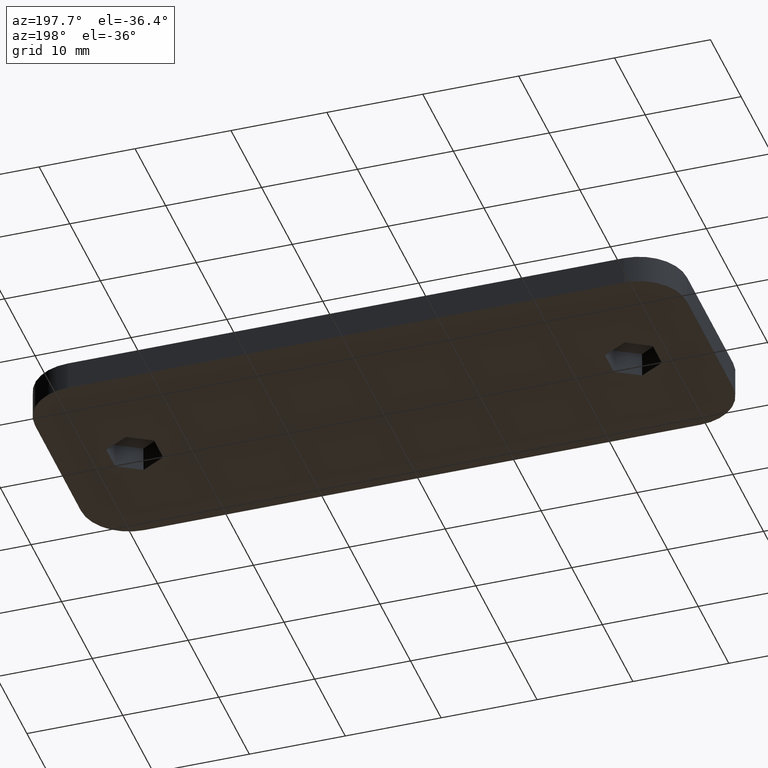
[diagram: clean part render]
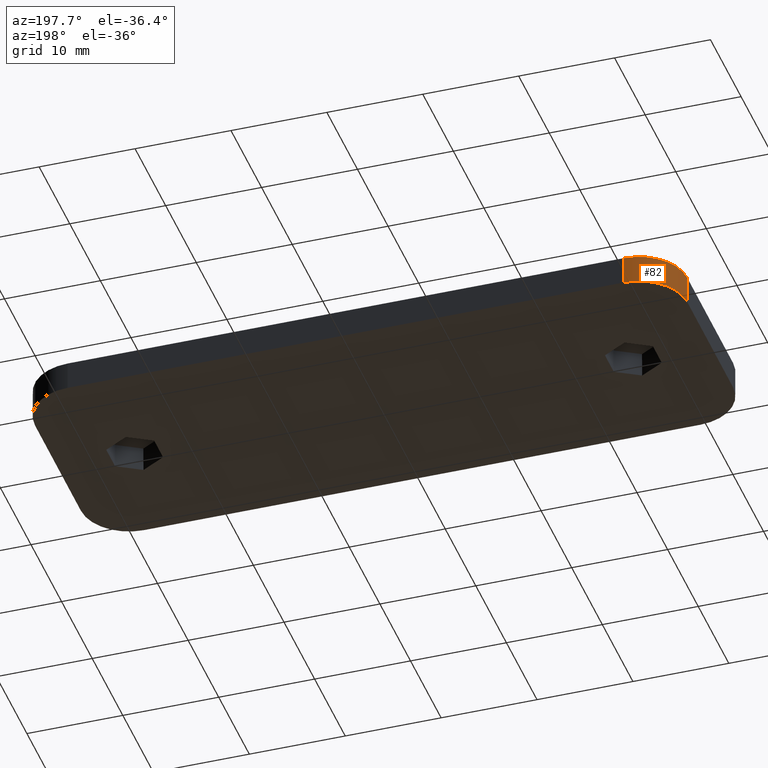
[diagram: same view with one face highlighted and labeled with its STEP entity id]
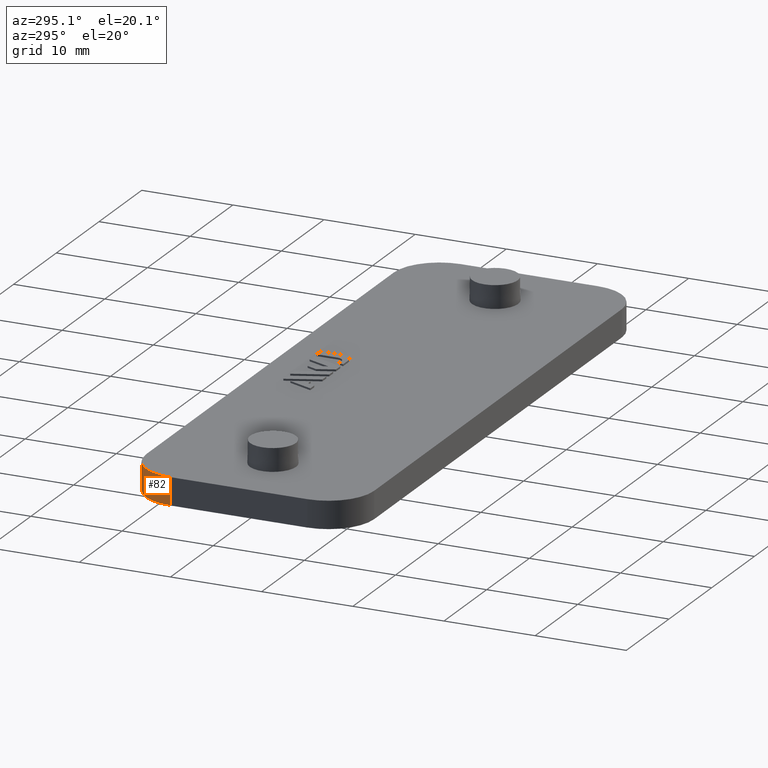
[diagram: same view with one face highlighted and labeled with its STEP entity id]
A machine part, auxiliary view. The second image highlights one B-rep face of the part: STEP entity #82.
A second angle (auxiliary view) of the same face is appended — the face is thin or edge-on in the first view.
In plain terms, the highlighted cylindrical surface (partial cylindrical patch) has radius 5 mm, axis along (-0, 0, 1).
Its self-contained STEP definition (entity closure, byte-faithful):
#82 = ADVANCED_FACE( '', ( #160 ), #161, .T. );
#160 = FACE_OUTER_BOUND( '', #293, .T. );
#161 = CYLINDRICAL_SURFACE( '', #294, 5.00000000000000 );
#293 = EDGE_LOOP( '', ( #502, #503, #504, #505 ) );
#294 = AXIS2_PLACEMENT_3D( '', #506, #507, #508 );
#502 = ORIENTED_EDGE( '', *, *, #948, .F. );
#503 = ORIENTED_EDGE( '', *, *, #897, .T. );
#504 = ORIENTED_EDGE( '', *, *, #922, .T. );
#505 = ORIENTED_EDGE( '', *, *, #945, .F. );
#506 = CARTESIAN_POINT( '', ( -29.0000000000000, 7.50000000000001, 91.3307148606441 ) );
#507 = DIRECTION( '', ( -1.60751816480226E-016, 1.81794180051289E-016, 1.00000000000000 ) );
#508 = DIRECTION( '', ( -1.00000000000000, 4.62592926927148E-016, -1.60751816480226E-016 ) );
#897 = EDGE_CURVE( '', #1061, #1059, #1062, .T. );
#922 = EDGE_CURVE( '', #1059, #1108, #1110, .T. );
#945 = EDGE_CURVE( '', #1152, #1108, #1154, .T. );
#948 = EDGE_CURVE( '', #1061, #1152, #1157, .T. );
#1059 = VERTEX_POINT( '', #1319 );
#1061 = VERTEX_POINT( '', #1322 );
#1062 = CIRCLE( '', #1323, 5.00000000000000 );
#1108 = VERTEX_POINT( '', #1387 );
#1110 = LINE( '', #1390, #1391 );
#1152 = VERTEX_POINT( '', #1452 );
#1154 = CIRCLE( '', #1455, 5.00000000000000 );
#1157 = LINE( '', #1459, #1460 );
#1319 = CARTESIAN_POINT( '', ( -29.0000000000000, 12.5000000000000, 3.00000000000002 ) );
#1322 = CARTESIAN_POINT( '', ( -34.0000000000000, 7.50000000000000, 3.00000000000002 ) );
#1323 = AXIS2_PLACEMENT_3D( '', #1677, #1678, #1679 );
#1387 = CARTESIAN_POINT( '', ( -29.0000000000000, 12.5000000000000, 1.31124088366755E-014 ) );
#1390 = CARTESIAN_POINT( '', ( -29.0000000000000, 12.5000000000000, 91.3307148606441 ) );
#1391 = VECTOR( '', #1714, 1000.00000000000 );
#1452 = CARTESIAN_POINT( '', ( -34.0000000000000, 7.50000000000000, 1.34185604251311E-014 ) );
#1455 = AXIS2_PLACEMENT_3D( '', #1741, #1742, #1743 );
#1459 = CARTESIAN_POINT( '', ( -34.0000000000000, 7.50000000000001, 91.3307148606441 ) );
#1460 = VECTOR( '', #1748, 1000.00000000000 );
#1677 = CARTESIAN_POINT( '', ( -29.0000000000000, 7.50000000000000, 3.00000000000002 ) );
#1678 = DIRECTION( '', ( 0.000000000000000, -6.12303176911189E-017, -1.00000000000000 ) );
#1679 = DIRECTION( '', ( 0.000000000000000, 1.00000000000000, -6.12303176911189E-017 ) );
#1714 = DIRECTION( '', ( 1.60751816480226E-016, -1.81794180051289E-016, -1.00000000000000 ) );
#1741 = CARTESIAN_POINT( '', ( -29.0000000000000, 7.50000000000000, 1.34185604251311E-014 ) );
#1742 = DIRECTION( '', ( 0.000000000000000, -6.12303176911189E-017, -1.00000000000000 ) );
#1743 = DIRECTION( '', ( 0.000000000000000, 1.00000000000000, -6.12303176911189E-017 ) );
#1748 = DIRECTION( '', ( 1.60751816480226E-016, -1.81794180051289E-016, -1.00000000000000 ) );